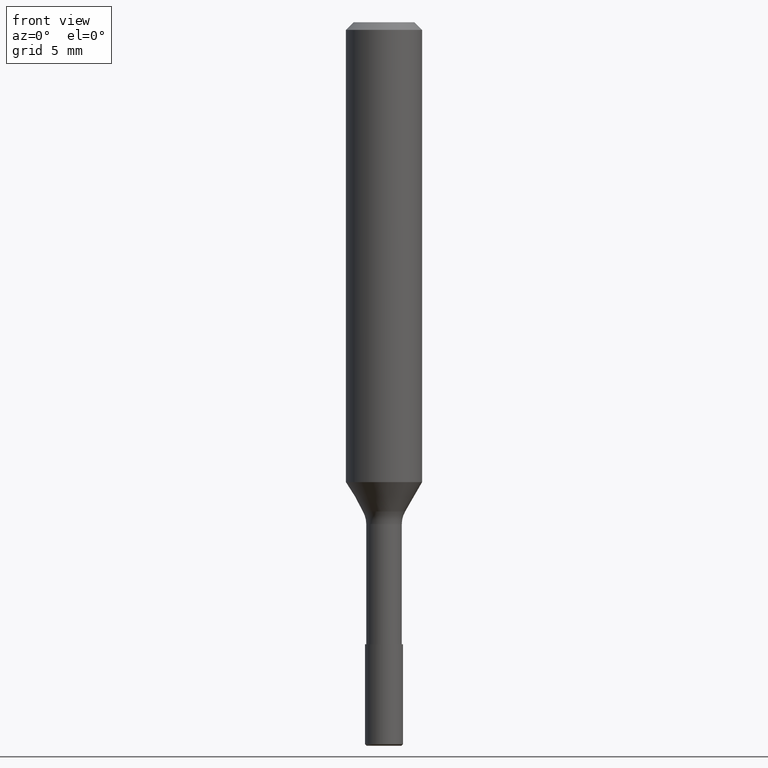
[diagram: clean part render]
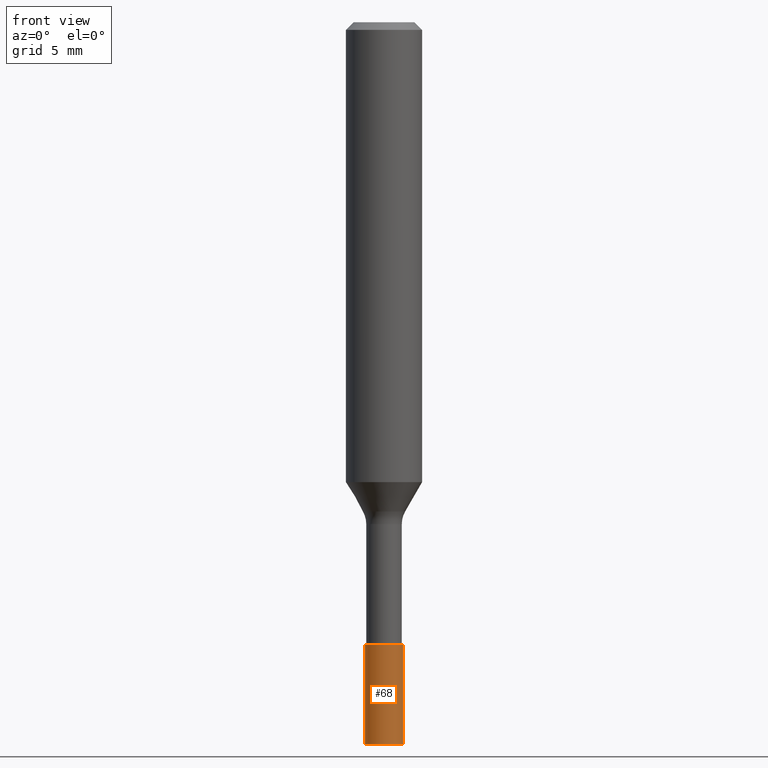
[diagram: same view with one face highlighted and labeled with its STEP entity id]
A machine part, front view. The second image highlights one B-rep face of the part: STEP entity #68.
In plain terms, the highlighted cylindrical surface (bore or boss wall) has radius 1.5 mm, axis along (0, -0, 1).
Its self-contained STEP definition (entity closure, byte-faithful):
#13 = CIRCLE ( 'NONE', #52, 1.500000000000016431 ) ;
#15 = CYLINDRICAL_SURFACE ( 'NONE', #158, 1.500000000000016431 ) ;
#27 = DIRECTION ( 'NONE',  ( -1.000000000000000000, 0.0000000000000000000, 9.251858538542816028E-15 ) ) ;
#30 = FACE_OUTER_BOUND ( 'NONE', #131, .T. ) ;
#38 = DIRECTION ( 'NONE',  ( 1.000000000000000000, 0.0000000000000000000, -6.938893903907152647E-15 ) ) ;
#44 = ORIENTED_EDGE ( 'NONE', *, *, #134, .F. ) ;
#51 = CARTESIAN_POINT ( 'NONE',  ( -4.223805938587122050E-13, 0.0000000000000000000, -56.86999999999999744 ) ) ;
#52 = AXIS2_PLACEMENT_3D ( 'NONE', #84, #235, #201 ) ;
#54 = EDGE_LOOP ( 'NONE', ( #44 ) ) ;
#66 = EDGE_CURVE ( 'NONE', #223, #223, #261, .T. ) ;
#68 = ADVANCED_FACE ( 'NONE', ( #87, #30 ), #15, .T. ) ;
#76 = DIRECTION ( 'NONE',  ( 7.373952358995601206E-15, -0.0000000000000000000, 1.000000000000000000 ) ) ;
#84 = CARTESIAN_POINT ( 'NONE',  ( -3.647148231924723565E-13, 0.0000000000000000000, -48.99999999999999289 ) ) ;
#87 = FACE_OUTER_BOUND ( 'NONE', #54, .T. ) ;
#107 = AXIS2_PLACEMENT_3D ( 'NONE', #51, #117, #27 ) ;
#117 = DIRECTION ( 'NONE',  ( -1.019883235173059248E-14, 0.0000000000000000000, -1.000000000000000000 ) ) ;
#131 = EDGE_LOOP ( 'NONE', ( #187 ) ) ;
#134 = EDGE_CURVE ( 'NONE', #141, #141, #13, .T. ) ;
#141 = VERTEX_POINT ( 'NONE', #241 ) ;
#158 = AXIS2_PLACEMENT_3D ( 'NONE', #160, #76, #38 ) ;
#160 = CARTESIAN_POINT ( 'NONE',  ( 6.056509442254067229E-14, 0.0000000000000000000, 8.673266236417621400 ) ) ;
#187 = ORIENTED_EDGE ( 'NONE', *, *, #66, .F. ) ;
#194 = CARTESIAN_POINT ( 'NONE',  ( -1.500000000000447642, 0.0000000000000000000, -56.86999999999998323 ) ) ;
#201 = DIRECTION ( 'NONE',  ( 1.000000000000000000, 0.0000000000000000000, -9.251858538542869670E-15 ) ) ;
#223 = VERTEX_POINT ( 'NONE', #194 ) ;
#235 = DIRECTION ( 'NONE',  ( 6.982962677686266711E-15, 0.0000000000000000000, 1.000000000000000000 ) ) ;
#241 = CARTESIAN_POINT ( 'NONE',  ( 1.499999999999651834, 0.0000000000000000000, -49.00000000000000711 ) ) ;
#261 = CIRCLE ( 'NONE', #107, 1.500000000000025091 ) ;